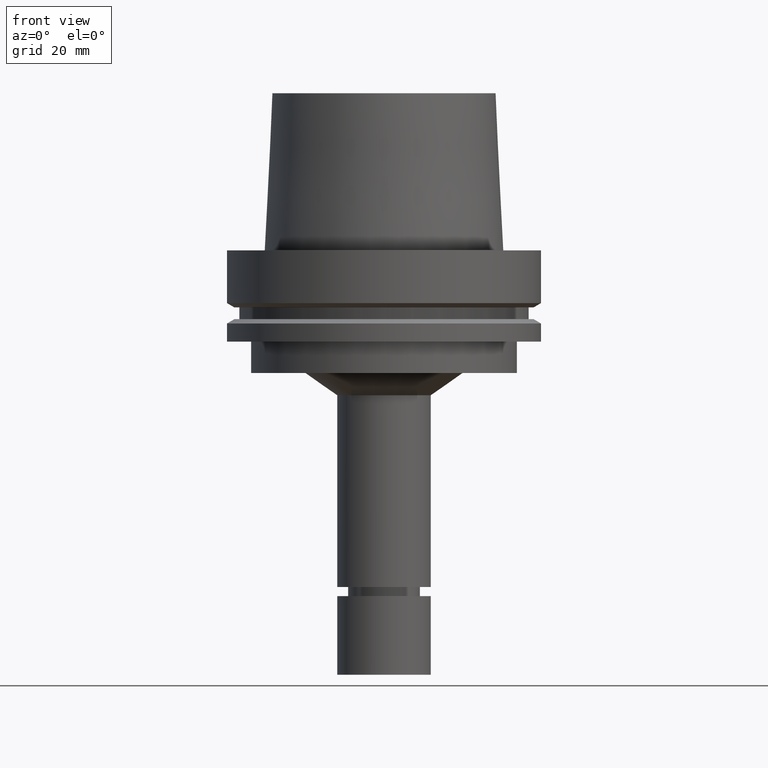
[diagram: clean part render]
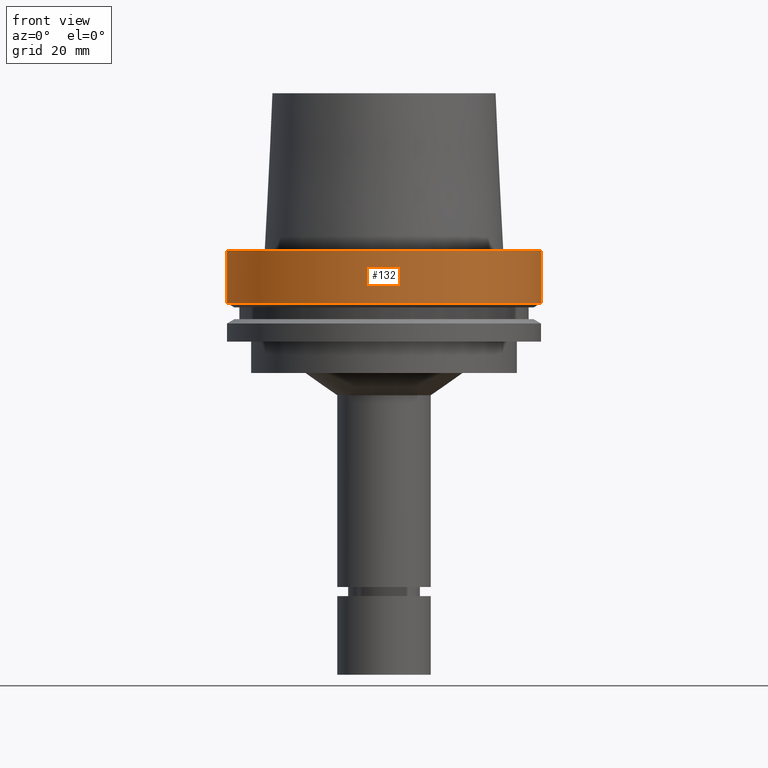
[diagram: same view with one face highlighted and labeled with its STEP entity id]
A machine part, front view. The second image highlights one B-rep face of the part: STEP entity #132.
In plain terms, the highlighted cylindrical surface (bore or boss wall) has radius 50 mm, axis along (0, 0, -1).
Its self-contained STEP definition (entity closure, byte-faithful):
#108=EDGE_CURVE('Unnamed[1]',#262,#262,#263,.T.);
#132=ADVANCED_FACE('Unnamed[1]',(#297,#298),#299,.T.);
#163=EDGE_CURVE('Unnamed[1]',#346,#346,#347,.T.);
#262=VERTEX_POINT('',#472);
#263=CIRCLE('',#473,50.0);
#297=FACE_BOUND('',#516,.T.);
#298=FACE_BOUND('',#517,.T.);
#299=CYLINDRICAL_SURFACE('',#518,50.0);
#346=VERTEX_POINT('',#577);
#347=CIRCLE('',#578,50.0);
#472=CARTESIAN_POINT('',(1.0257889421431E-015,50.0,-16.75240474));
#473=AXIS2_PLACEMENT_3D('',#697,#698,#699);
#516=EDGE_LOOP('',(#732));
#517=EDGE_LOOP('',(#733));
#518=AXIS2_PLACEMENT_3D('',#734,#735,#736);
#577=CARTESIAN_POINT('',(-1.81547968506605E-031,50.0,-9.76766004263236E-016));
#578=AXIS2_PLACEMENT_3D('',#789,#790,#791);
#697=CARTESIAN_POINT('',(1.0257889421431E-015,2.05157788428619E-015,-16.75240474));
#698=DIRECTION('',(6.12323399573677E-017,1.22464679914672E-016,-1.0));
#699=DIRECTION('',(-1.23259516440783E-032,1.0,1.22464679914672E-016));
#732=ORIENTED_EDGE('',*,*,#108,.F.);
#733=ORIENTED_EDGE('',*,*,#163,.T.);
#734=CARTESIAN_POINT('',(5.12894471071548E-016,1.0257889421431E-015,-8.37620236999999));
#735=DIRECTION('',(6.12323399573677E-017,1.22464679914672E-016,-1.0));
#736=DIRECTION('',(-1.23259516440783E-032,1.0,1.22464679914672E-016));
#789=CARTESIAN_POINT('',(0.0,0.0,0.0));
#790=DIRECTION('',(6.12323399573677E-017,1.22464679914672E-016,-1.0));
#791=DIRECTION('',(-1.23259516440783E-032,1.0,1.22464679914672E-016));